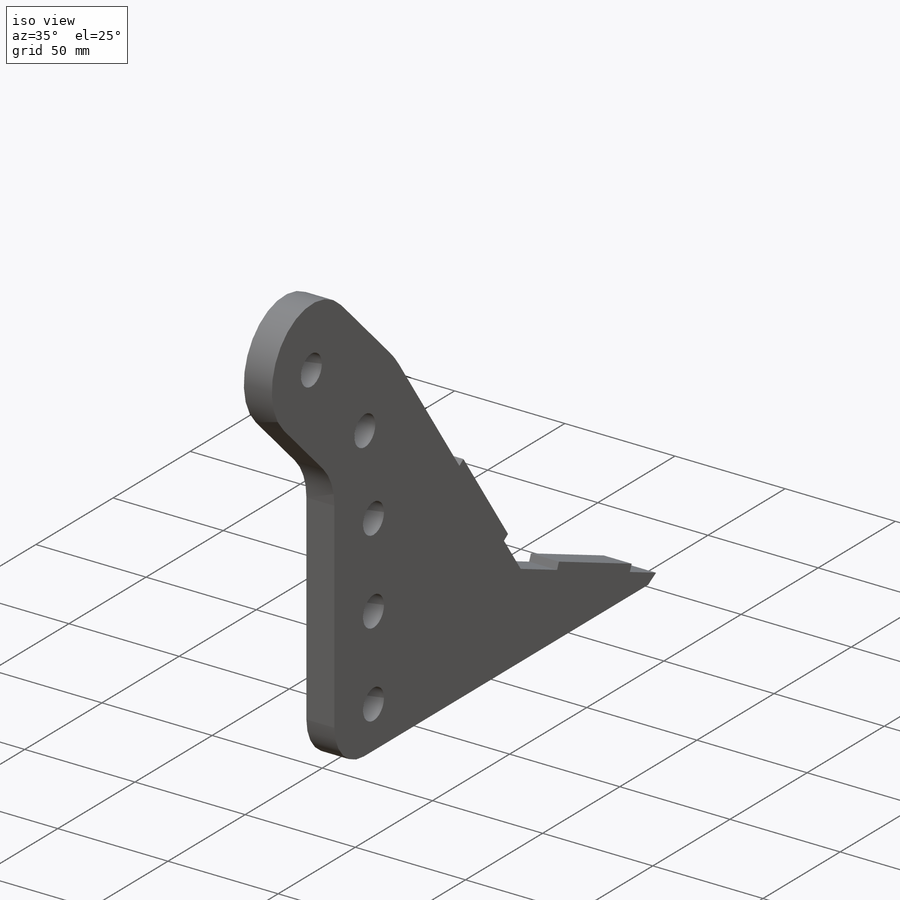
[diagram: iso view]
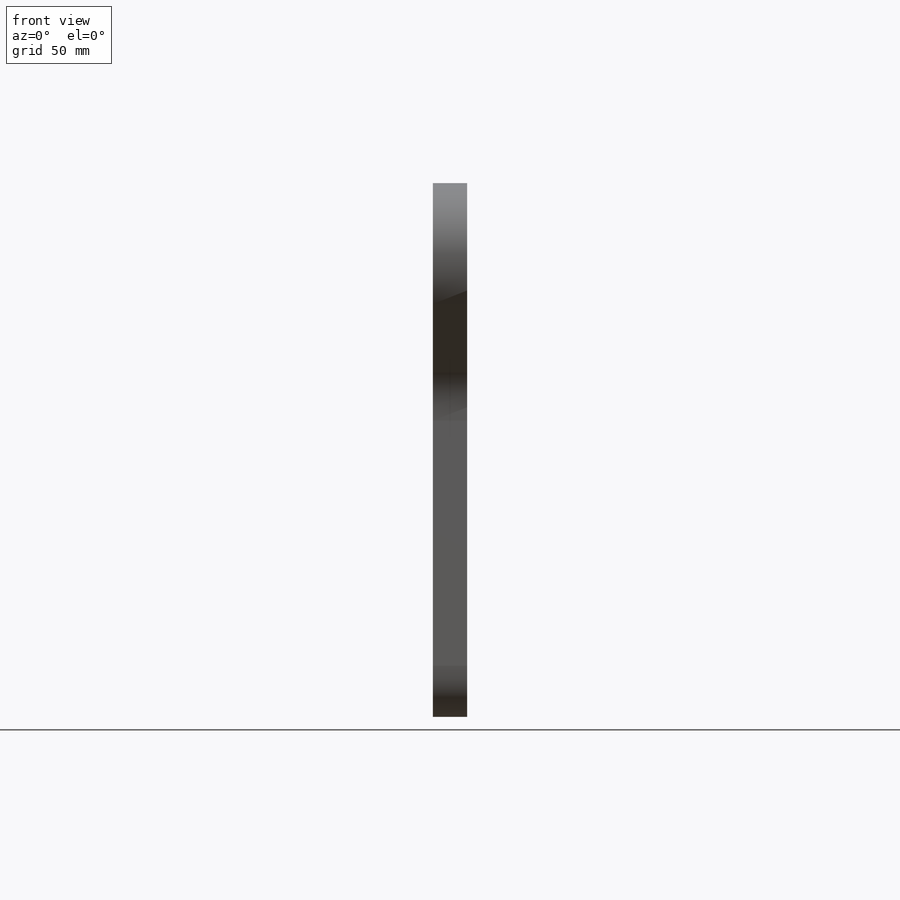
[diagram: front view]
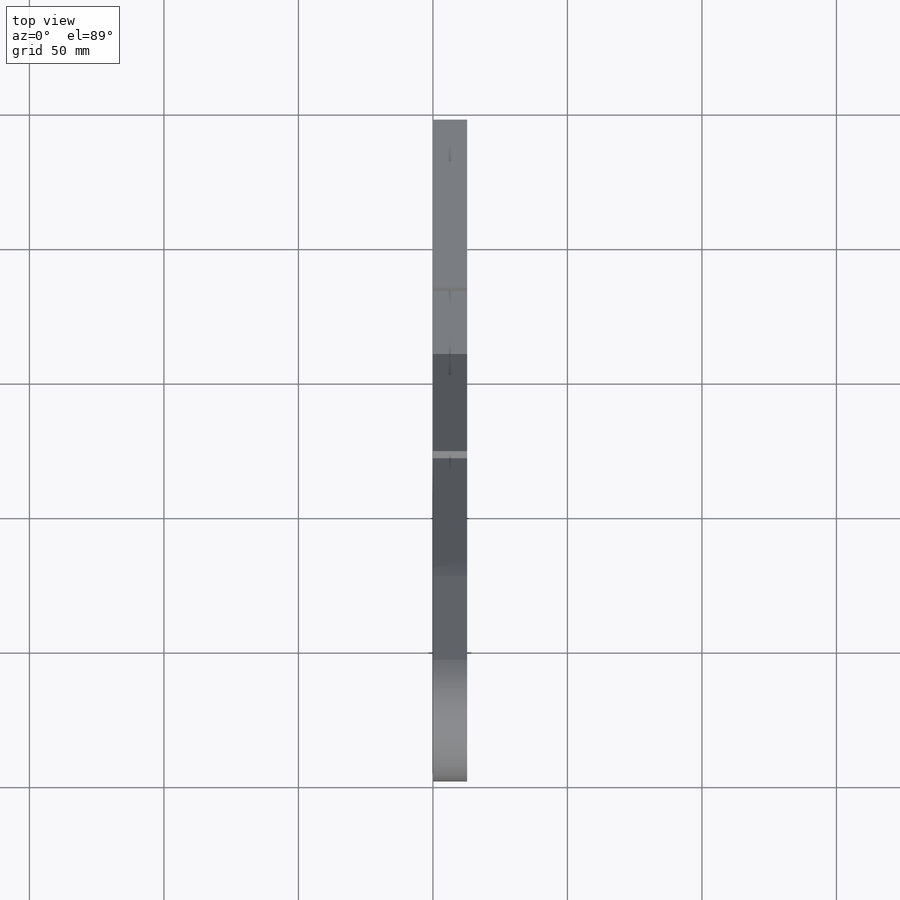
[diagram: top view]
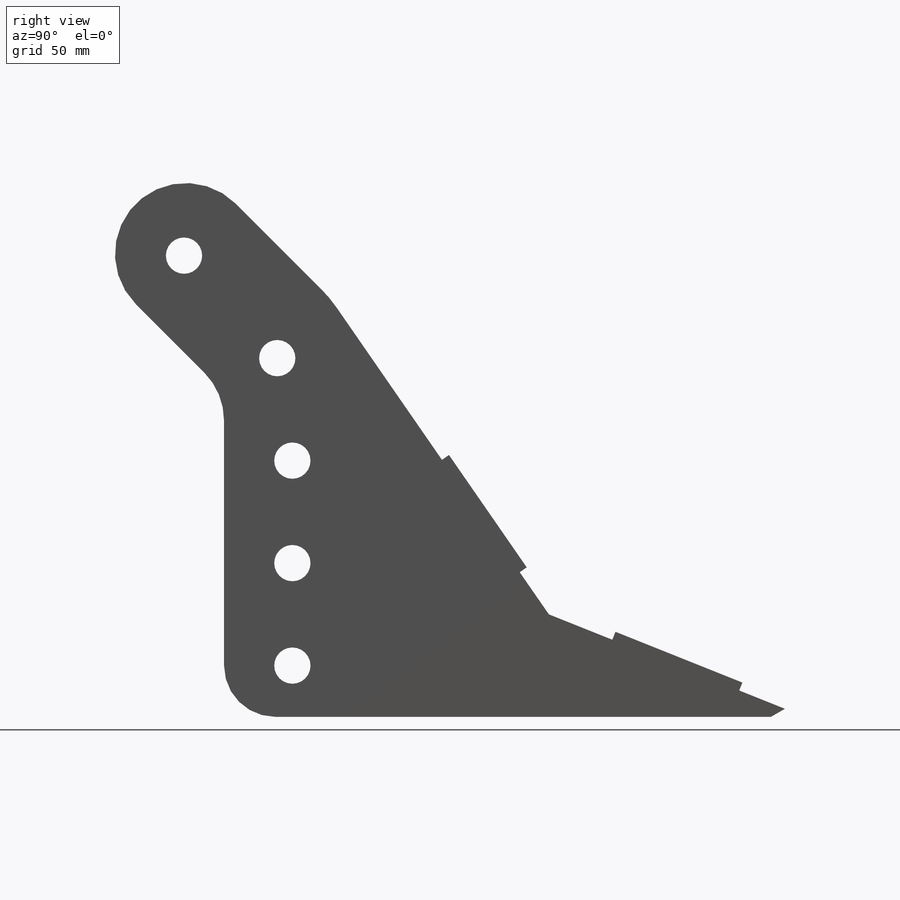
[diagram: right view]
SOLIDWORKS PART (.sldprt)
format: sldprt  version: not decoded by parser v0  size: 306,176 bytes
history: native  units: mm
features: sketch x6, extrude x3, fillet x3, material x1, hole x1, cut_extrude x1, chamfer x1 (+13 scaffold rows collapsed)
feature tree (29):
  scaffold x13  (default folders/planes/origin — collapsed)
  material  "Plain Carbon Steel"
  sketch  "Sketch1"  dims[c1.D1=101.6mm c1.D2=38.1mm c1.D3=~50.905407mm c1.D4=~101.582949mm c2.D4=135.0deg c2.D5=~112.168879mm c3.D5=135.0deg c3.D6=254.0mm c3.D7=339.725mm c3.D8=120.65mm c3.D9=50.8mm c3.D10=~54.697237mm c4.D10=110.0deg c4.D11=~28.989986mm c5.D11=110.0deg]
  extrude  "Boss-Extrude1"  Depth=12.7mm
  fillet  "Fillet1"  Radius=25.4mm
  fillet  "Fillet2"  Radius=50.8mm
  hole  "1/2 Clearance Hole1"  Diameter=13.49248mm Depth=38.1mm
  sketch  "Sketch3"  dims[D2=38.1mm D3=19.05mm D4=38.1mm D5=38.1mm D6=38.1mm D1=25.4mm]
  sketch  "Sketch2"  dims[hole-wizard template sketch: 46 standard entries collapsed; hole parameters kept: c15.Hole Dia.=~13.49248mm c15.Hole Depth=38.1mm c15.D3=~14.816244mm c15.Drill Angle=118.0deg]
  sketch  "Sketch4"
  cut_extrude  "Cut-Extrude1"  [1 undecoded]
  sketch  "Sketch5"  dims[D1=165.1mm D2=38.1mm D3=69.85mm]
  extrude  "Boss-Extrude2"  [1 undecoded]
  sketch  "Sketch6"  dims[D1=19.05mm D2=25.4mm D3=50.8mm D4=3.175mm]
  extrude  "Boss-Extrude3"  [1 undecoded]
  fillet  "Fillet3"  Radius=19.05mm
  chamfer  "Chamfer1"  Distance=12.7mm Angle=30deg
decode coverage: 11 of 15 modeling features carry decoded parameters
note: ~ marks probable driven/reference dimensions
note: 3 parameter values undecoded
summary: no parameter record found for 3 features
note: suppression state not decoded; provenance and decode notes live in map.json
